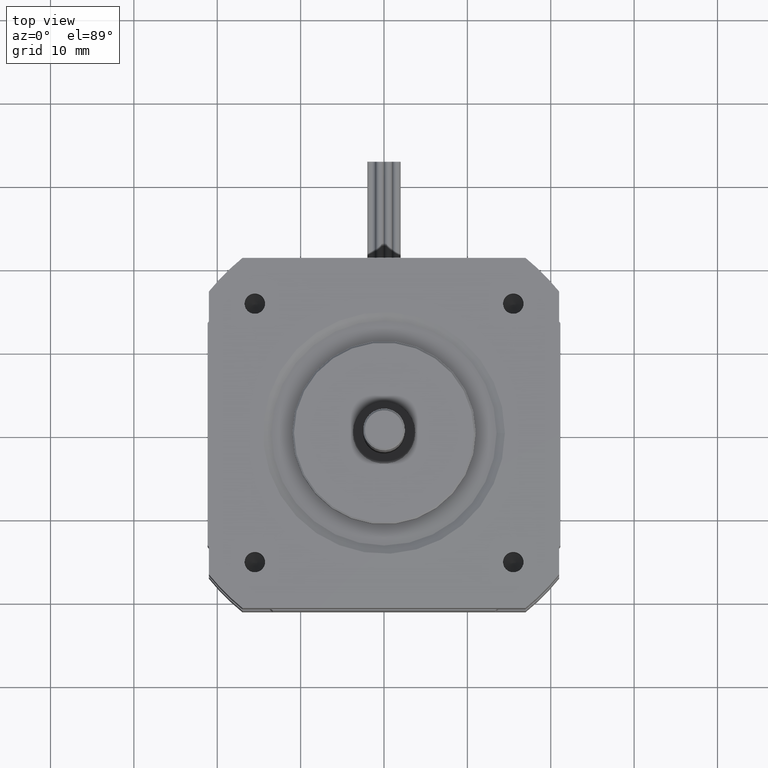
[diagram: clean part render]
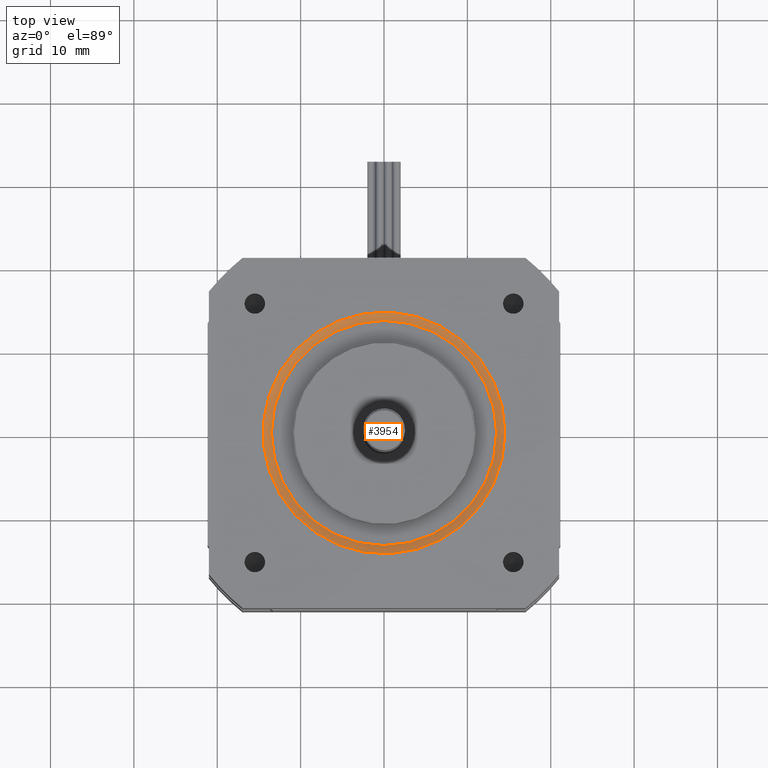
[diagram: same view with one face highlighted and labeled with its STEP entity id]
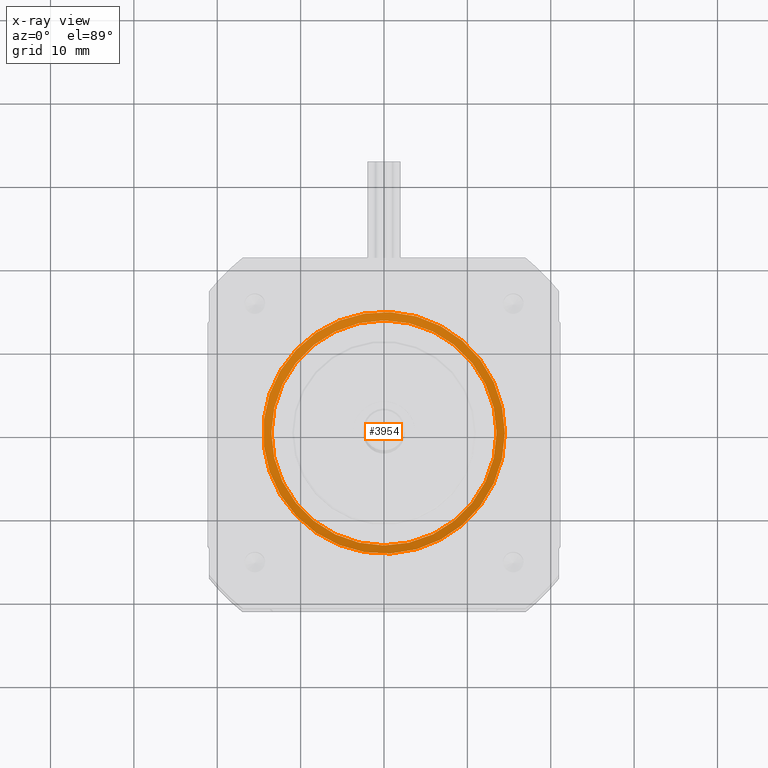
[diagram: x-ray of the same camera — body ghosted, the highlighted face saturated]
A machine part, top view. The second image highlights one B-rep face of the part: STEP entity #3954.
The next image is the same camera in x-ray: the body ghosted, the highlighted face saturated — about 0% of this face is hidden behind the body in this view.
In plain terms, the highlighted conical surface has half-angle 63.435 deg.
Its self-contained STEP definition (entity closure, byte-faithful):
#742=FACE_BOUND('',#1145,.T.);
#884=FACE_OUTER_BOUND('',#1144,.T.);
#1144=EDGE_LOOP('',(#2704));
#1145=EDGE_LOOP('',(#2705));
#1468=CIRCLE('',#4239,13.5);
#1469=CIRCLE('',#4240,14.5);
#1724=VERTEX_POINT('',#6070);
#1725=VERTEX_POINT('',#6072);
#2122=EDGE_CURVE('',#1724,#1724,#1468,.T.);
#2123=EDGE_CURVE('',#1725,#1725,#1469,.T.);
#2704=ORIENTED_EDGE('',*,*,#2122,.F.);
#2705=ORIENTED_EDGE('',*,*,#2123,.T.);
#3759=CONICAL_SURFACE('',#4238,14.,63.434948822922);
#3954=ADVANCED_FACE('',(#884,#742),#3759,.F.);
#4238=AXIS2_PLACEMENT_3D('',#6069,#4809,#4810);
#4239=AXIS2_PLACEMENT_3D('',#6071,#4811,#4812);
#4240=AXIS2_PLACEMENT_3D('',#6073,#4813,#4814);
#4809=DIRECTION('center_axis',(-8.74300631892311E-16,-2.59037577520082E-32,
1.));
#4810=DIRECTION('ref_axis',(-1.,-7.54604712049907E-17,-8.74300631892311E-16));
#4811=DIRECTION('center_axis',(-8.74300631892311E-16,-2.59037577520082E-32,
1.));
#4812=DIRECTION('ref_axis',(-1.,-7.54604712049907E-17,-8.74300631892311E-16));
#4813=DIRECTION('center_axis',(-8.74300631892311E-16,-2.59037577520082E-32,
1.));
#4814=DIRECTION('ref_axis',(-1.,-7.54604712049907E-17,-8.74300631892311E-16));
#6069=CARTESIAN_POINT('Origin',(-9.64535887989694E-15,4.73220975404338E-15,
5.74999999999989));
#6070=CARTESIAN_POINT('',(13.5,7.40419911531075E-15,5.4999999999999));
#6071=CARTESIAN_POINT('Origin',(-9.42678372192386E-15,4.73220975404338E-15,
5.49999999999989));
#6072=CARTESIAN_POINT('',(14.5,7.60206558651575E-15,5.9999999999999));
#6073=CARTESIAN_POINT('Origin',(-9.86393403787002E-15,4.73220975404338E-15,
5.99999999999989));